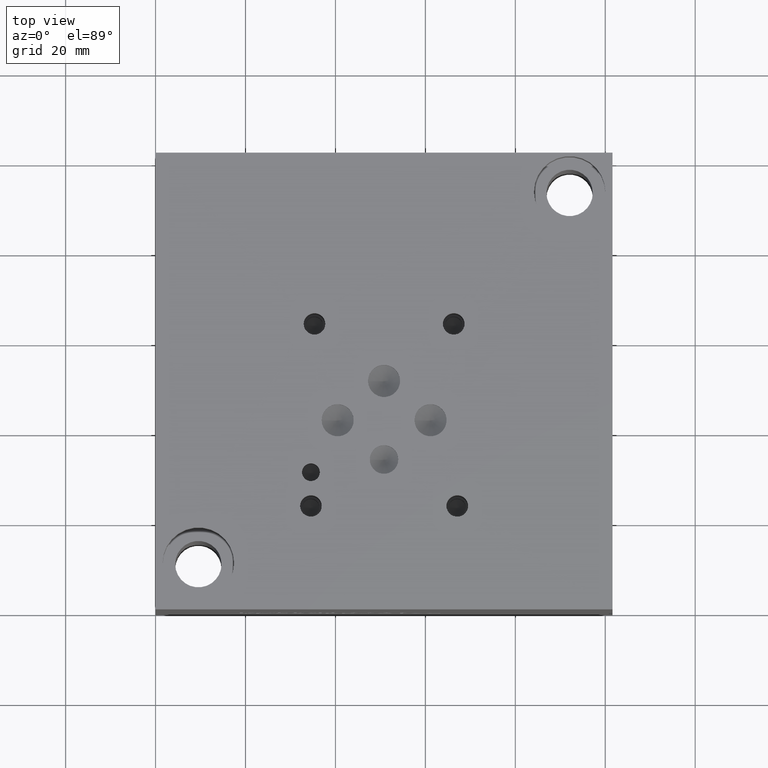
[diagram: clean part render]
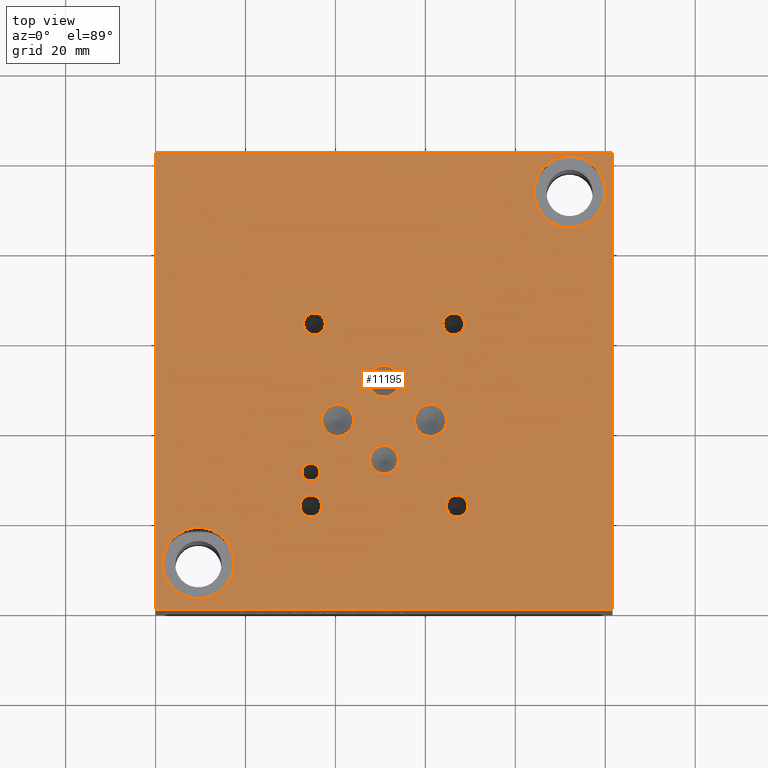
[diagram: same view with one face highlighted and labeled with its STEP entity id]
A machine part, top view. The second image highlights one B-rep face of the part: STEP entity #11195.
In plain terms, the highlighted planar face has unit normal (0, 0, 1).
Its self-contained STEP definition (entity closure, byte-faithful):
#249=CIRCLE('',#11739,7.9375);
#250=CIRCLE('',#11740,7.9375);
#254=CIRCLE('',#11747,7.9375);
#255=CIRCLE('',#11748,7.9375);
#258=CIRCLE('',#11754,3.175);
#259=CIRCLE('',#11755,3.175);
#262=CIRCLE('',#11760,3.5687);
#263=CIRCLE('',#11761,3.5687);
#266=CIRCLE('',#11766,3.5687);
#267=CIRCLE('',#11767,3.5687);
#270=CIRCLE('',#11772,3.5687);
#271=CIRCLE('',#11773,3.5687);
#274=CIRCLE('',#11778,1.9812);
#275=CIRCLE('',#11779,1.9812);
#281=CIRCLE('',#11788,2.413);
#282=CIRCLE('',#11789,2.413);
#288=CIRCLE('',#11799,2.413);
#289=CIRCLE('',#11800,2.413);
#295=CIRCLE('',#11810,2.413);
#296=CIRCLE('',#11811,2.413);
#302=CIRCLE('',#11821,2.413);
#303=CIRCLE('',#11822,2.413);
#371=FACE_BOUND('',#2052,.T.);
#372=FACE_BOUND('',#2053,.T.);
#373=FACE_BOUND('',#2054,.T.);
#374=FACE_BOUND('',#2055,.T.);
#375=FACE_BOUND('',#2056,.T.);
#376=FACE_BOUND('',#2057,.T.);
#377=FACE_BOUND('',#2058,.T.);
#378=FACE_BOUND('',#2059,.T.);
#379=FACE_BOUND('',#2060,.T.);
#380=FACE_BOUND('',#2061,.T.);
#381=FACE_BOUND('',#2062,.T.);
#1414=FACE_OUTER_BOUND('',#2051,.T.);
#2051=EDGE_LOOP('',(#9825,#9826,#9827,#9828));
#2052=EDGE_LOOP('',(#9829,#9830));
#2053=EDGE_LOOP('',(#9831,#9832));
#2054=EDGE_LOOP('',(#9833,#9834));
#2055=EDGE_LOOP('',(#9835,#9836));
#2056=EDGE_LOOP('',(#9837,#9838));
#2057=EDGE_LOOP('',(#9839,#9840));
#2058=EDGE_LOOP('',(#9841,#9842));
#2059=EDGE_LOOP('',(#9843,#9844));
#2060=EDGE_LOOP('',(#9845,#9846));
#2061=EDGE_LOOP('',(#9847,#9848));
#2062=EDGE_LOOP('',(#9849,#9850));
#2440=LINE('',#16811,#3481);
#2925=LINE('',#18321,#3966);
#3015=LINE('',#18647,#4056);
#3104=LINE('',#19308,#4145);
#3481=VECTOR('',#12404,10.);
#3966=VECTOR('',#13241,10.);
#4056=VECTOR('',#13401,10.);
#4145=VECTOR('',#14098,10.);
#4550=VERTEX_POINT('',#16808);
#4551=VERTEX_POINT('',#16810);
#4920=VERTEX_POINT('',#18319);
#4993=VERTEX_POINT('',#18646);
#5138=VERTEX_POINT('',#19132);
#5139=VERTEX_POINT('',#19133);
#5143=VERTEX_POINT('',#19147);
#5144=VERTEX_POINT('',#19148);
#5148=VERTEX_POINT('',#19162);
#5149=VERTEX_POINT('',#19163);
#5153=VERTEX_POINT('',#19175);
#5154=VERTEX_POINT('',#19176);
#5158=VERTEX_POINT('',#19188);
#5159=VERTEX_POINT('',#19189);
#5163=VERTEX_POINT('',#19201);
#5164=VERTEX_POINT('',#19202);
#5168=VERTEX_POINT('',#19214);
#5169=VERTEX_POINT('',#19215);
#5176=VERTEX_POINT('',#19234);
#5177=VERTEX_POINT('',#19235);
#5184=VERTEX_POINT('',#19256);
#5185=VERTEX_POINT('',#19257);
#5192=VERTEX_POINT('',#19278);
#5193=VERTEX_POINT('',#19279);
#5200=VERTEX_POINT('',#19300);
#5201=VERTEX_POINT('',#19301);
#5806=EDGE_CURVE('',#4551,#4550,#2440,.T.);
#6358=EDGE_CURVE('',#4550,#4920,#2925,.T.);
#6466=EDGE_CURVE('',#4993,#4551,#3015,.T.);
#6672=EDGE_CURVE('',#5138,#5139,#249,.T.);
#6673=EDGE_CURVE('',#5139,#5138,#250,.T.);
#6679=EDGE_CURVE('',#5143,#5144,#254,.T.);
#6680=EDGE_CURVE('',#5144,#5143,#255,.T.);
#6686=EDGE_CURVE('',#5148,#5149,#258,.T.);
#6687=EDGE_CURVE('',#5149,#5148,#259,.T.);
#6692=EDGE_CURVE('',#5153,#5154,#262,.T.);
#6693=EDGE_CURVE('',#5154,#5153,#263,.T.);
#6698=EDGE_CURVE('',#5158,#5159,#266,.T.);
#6699=EDGE_CURVE('',#5159,#5158,#267,.T.);
#6704=EDGE_CURVE('',#5163,#5164,#270,.T.);
#6705=EDGE_CURVE('',#5164,#5163,#271,.T.);
#6710=EDGE_CURVE('',#5168,#5169,#274,.T.);
#6711=EDGE_CURVE('',#5169,#5168,#275,.T.);
#6719=EDGE_CURVE('',#5176,#5177,#281,.T.);
#6720=EDGE_CURVE('',#5177,#5176,#282,.T.);
#6729=EDGE_CURVE('',#5184,#5185,#288,.T.);
#6730=EDGE_CURVE('',#5185,#5184,#289,.T.);
#6739=EDGE_CURVE('',#5192,#5193,#295,.T.);
#6740=EDGE_CURVE('',#5193,#5192,#296,.T.);
#6749=EDGE_CURVE('',#5200,#5201,#302,.T.);
#6750=EDGE_CURVE('',#5201,#5200,#303,.T.);
#6753=EDGE_CURVE('',#4920,#4993,#3104,.T.);
#9825=ORIENTED_EDGE('',*,*,#5806,.T.);
#9826=ORIENTED_EDGE('',*,*,#6358,.T.);
#9827=ORIENTED_EDGE('',*,*,#6753,.T.);
#9828=ORIENTED_EDGE('',*,*,#6466,.T.);
#9829=ORIENTED_EDGE('',*,*,#6672,.T.);
#9830=ORIENTED_EDGE('',*,*,#6673,.T.);
#9831=ORIENTED_EDGE('',*,*,#6679,.T.);
#9832=ORIENTED_EDGE('',*,*,#6680,.T.);
#9833=ORIENTED_EDGE('',*,*,#6686,.T.);
#9834=ORIENTED_EDGE('',*,*,#6687,.T.);
#9835=ORIENTED_EDGE('',*,*,#6692,.T.);
#9836=ORIENTED_EDGE('',*,*,#6693,.T.);
#9837=ORIENTED_EDGE('',*,*,#6698,.T.);
#9838=ORIENTED_EDGE('',*,*,#6699,.T.);
#9839=ORIENTED_EDGE('',*,*,#6704,.T.);
#9840=ORIENTED_EDGE('',*,*,#6705,.T.);
#9841=ORIENTED_EDGE('',*,*,#6710,.T.);
#9842=ORIENTED_EDGE('',*,*,#6711,.T.);
#9843=ORIENTED_EDGE('',*,*,#6719,.T.);
#9844=ORIENTED_EDGE('',*,*,#6720,.T.);
#9845=ORIENTED_EDGE('',*,*,#6729,.T.);
#9846=ORIENTED_EDGE('',*,*,#6730,.T.);
#9847=ORIENTED_EDGE('',*,*,#6739,.T.);
#9848=ORIENTED_EDGE('',*,*,#6740,.T.);
#9849=ORIENTED_EDGE('',*,*,#6749,.T.);
#9850=ORIENTED_EDGE('',*,*,#6750,.T.);
#10183=PLANE('',#11826);
#11195=ADVANCED_FACE('',(#1414,#371,#372,#373,#374,#375,#376,#377,#378,
#379,#380,#381),#10183,.T.);
#11739=AXIS2_PLACEMENT_3D('',#19134,#13900,#13901);
#11740=AXIS2_PLACEMENT_3D('',#19135,#13902,#13903);
#11747=AXIS2_PLACEMENT_3D('',#19149,#13918,#13919);
#11748=AXIS2_PLACEMENT_3D('',#19150,#13920,#13921);
#11754=AXIS2_PLACEMENT_3D('',#19164,#13935,#13936);
#11755=AXIS2_PLACEMENT_3D('',#19165,#13937,#13938);
#11760=AXIS2_PLACEMENT_3D('',#19177,#13949,#13950);
#11761=AXIS2_PLACEMENT_3D('',#19178,#13951,#13952);
#11766=AXIS2_PLACEMENT_3D('',#19190,#13963,#13964);
#11767=AXIS2_PLACEMENT_3D('',#19191,#13965,#13966);
#11772=AXIS2_PLACEMENT_3D('',#19203,#13977,#13978);
#11773=AXIS2_PLACEMENT_3D('',#19204,#13979,#13980);
#11778=AXIS2_PLACEMENT_3D('',#19216,#13991,#13992);
#11779=AXIS2_PLACEMENT_3D('',#19217,#13993,#13994);
#11788=AXIS2_PLACEMENT_3D('',#19236,#14013,#14014);
#11789=AXIS2_PLACEMENT_3D('',#19237,#14015,#14016);
#11799=AXIS2_PLACEMENT_3D('',#19258,#14038,#14039);
#11800=AXIS2_PLACEMENT_3D('',#19259,#14040,#14041);
#11810=AXIS2_PLACEMENT_3D('',#19280,#14063,#14064);
#11811=AXIS2_PLACEMENT_3D('',#19281,#14065,#14066);
#11821=AXIS2_PLACEMENT_3D('',#19302,#14088,#14089);
#11822=AXIS2_PLACEMENT_3D('',#19303,#14090,#14091);
#11826=AXIS2_PLACEMENT_3D('',#19310,#14101,#14102);
#12404=DIRECTION('',(1.,0.,0.));
#13241=DIRECTION('',(0.,1.,0.));
#13401=DIRECTION('',(0.,-1.,0.));
#13900=DIRECTION('center_axis',(0.,0.,-1.));
#13901=DIRECTION('ref_axis',(1.,0.,0.));
#13902=DIRECTION('center_axis',(0.,0.,-1.));
#13903=DIRECTION('ref_axis',(1.,0.,0.));
#13918=DIRECTION('center_axis',(0.,0.,-1.));
#13919=DIRECTION('ref_axis',(1.,0.,0.));
#13920=DIRECTION('center_axis',(0.,0.,-1.));
#13921=DIRECTION('ref_axis',(1.,0.,0.));
#13935=DIRECTION('center_axis',(0.,0.,-1.));
#13936=DIRECTION('ref_axis',(1.,0.,0.));
#13937=DIRECTION('center_axis',(0.,0.,-1.));
#13938=DIRECTION('ref_axis',(1.,0.,0.));
#13949=DIRECTION('center_axis',(0.,0.,-1.));
#13950=DIRECTION('ref_axis',(1.,0.,0.));
#13951=DIRECTION('center_axis',(0.,0.,-1.));
#13952=DIRECTION('ref_axis',(1.,0.,0.));
#13963=DIRECTION('center_axis',(0.,0.,-1.));
#13964=DIRECTION('ref_axis',(1.,0.,0.));
#13965=DIRECTION('center_axis',(0.,0.,-1.));
#13966=DIRECTION('ref_axis',(1.,0.,0.));
#13977=DIRECTION('center_axis',(0.,0.,-1.));
#13978=DIRECTION('ref_axis',(1.,0.,0.));
#13979=DIRECTION('center_axis',(0.,0.,-1.));
#13980=DIRECTION('ref_axis',(1.,0.,0.));
#13991=DIRECTION('center_axis',(0.,0.,-1.));
#13992=DIRECTION('ref_axis',(1.,0.,0.));
#13993=DIRECTION('center_axis',(0.,0.,-1.));
#13994=DIRECTION('ref_axis',(1.,0.,0.));
#14013=DIRECTION('center_axis',(0.,0.,-1.));
#14014=DIRECTION('ref_axis',(1.,0.,0.));
#14015=DIRECTION('center_axis',(0.,0.,-1.));
#14016=DIRECTION('ref_axis',(1.,0.,0.));
#14038=DIRECTION('center_axis',(0.,0.,-1.));
#14039=DIRECTION('ref_axis',(1.,0.,0.));
#14040=DIRECTION('center_axis',(0.,0.,-1.));
#14041=DIRECTION('ref_axis',(1.,0.,0.));
#14063=DIRECTION('center_axis',(0.,0.,-1.));
#14064=DIRECTION('ref_axis',(1.,0.,0.));
#14065=DIRECTION('center_axis',(0.,0.,-1.));
#14066=DIRECTION('ref_axis',(1.,0.,0.));
#14088=DIRECTION('center_axis',(0.,0.,-1.));
#14089=DIRECTION('ref_axis',(1.,0.,0.));
#14090=DIRECTION('center_axis',(0.,0.,-1.));
#14091=DIRECTION('ref_axis',(1.,0.,0.));
#14098=DIRECTION('',(-1.,0.,0.));
#14101=DIRECTION('center_axis',(0.,0.,1.));
#14102=DIRECTION('ref_axis',(1.,0.,0.));
#16808=CARTESIAN_POINT('',(101.6,0.,76.2));
#16810=CARTESIAN_POINT('',(0.,0.,76.2));
#16811=CARTESIAN_POINT('',(0.,0.,76.2));
#18319=CARTESIAN_POINT('',(101.6,101.6,76.2));
#18321=CARTESIAN_POINT('',(101.6,0.,76.2));
#18646=CARTESIAN_POINT('',(0.,101.6,76.2));
#18647=CARTESIAN_POINT('',(0.,101.6,76.2));
#19132=CARTESIAN_POINT('',(100.0125,92.8624,76.2));
#19133=CARTESIAN_POINT('',(84.1375,92.8624,76.2));
#19134=CARTESIAN_POINT('Origin',(92.075,92.8624,76.2));
#19135=CARTESIAN_POINT('Origin',(92.075,92.8624,76.2));
#19147=CARTESIAN_POINT('',(17.4625,10.3124,76.2));
#19148=CARTESIAN_POINT('',(1.5875,10.3124,76.2));
#19149=CARTESIAN_POINT('Origin',(9.525,10.3124,76.2));
#19150=CARTESIAN_POINT('Origin',(9.525,10.3124,76.2));
#19162=CARTESIAN_POINT('',(53.975,33.3248,76.2));
#19163=CARTESIAN_POINT('',(47.625,33.3248,76.2));
#19164=CARTESIAN_POINT('Origin',(50.8,33.3248,76.2));
#19165=CARTESIAN_POINT('Origin',(50.8,33.3248,76.2));
#19175=CARTESIAN_POINT('',(64.7065,42.0624,76.2));
#19176=CARTESIAN_POINT('',(57.5691,42.0624,76.2));
#19177=CARTESIAN_POINT('Origin',(61.1378,42.0624,76.2));
#19178=CARTESIAN_POINT('Origin',(61.1378,42.0624,76.2));
#19188=CARTESIAN_POINT('',(44.0563,42.0624,76.2));
#19189=CARTESIAN_POINT('',(36.9189,42.0624,76.2));
#19190=CARTESIAN_POINT('Origin',(40.4876,42.0624,76.2));
#19191=CARTESIAN_POINT('Origin',(40.4876,42.0624,76.2));
#19201=CARTESIAN_POINT('',(54.3687,50.8,76.2));
#19202=CARTESIAN_POINT('',(47.2313,50.8,76.2));
#19203=CARTESIAN_POINT('Origin',(50.8,50.8,76.2));
#19204=CARTESIAN_POINT('Origin',(50.8,50.8,76.2));
#19214=CARTESIAN_POINT('',(36.5252,30.5054,76.2));
#19215=CARTESIAN_POINT('',(32.5628,30.5054,76.2));
#19216=CARTESIAN_POINT('Origin',(34.544,30.5054,76.2));
#19217=CARTESIAN_POINT('Origin',(34.544,30.5054,76.2));
#19234=CARTESIAN_POINT('',(69.4944,23.0124,76.2));
#19235=CARTESIAN_POINT('',(64.6684,23.0124,76.2));
#19236=CARTESIAN_POINT('Origin',(67.0814,23.0124,76.2));
#19237=CARTESIAN_POINT('Origin',(67.0814,23.0124,76.2));
#19256=CARTESIAN_POINT('',(37.7444,63.5,76.2));
#19257=CARTESIAN_POINT('',(32.9184,63.5,76.2));
#19258=CARTESIAN_POINT('Origin',(35.3314,63.5,76.2));
#19259=CARTESIAN_POINT('Origin',(35.3314,63.5,76.2));
#19278=CARTESIAN_POINT('',(68.707,63.5,76.2));
#19279=CARTESIAN_POINT('',(63.881,63.5,76.2));
#19280=CARTESIAN_POINT('Origin',(66.294,63.5,76.2));
#19281=CARTESIAN_POINT('Origin',(66.294,63.5,76.2));
#19300=CARTESIAN_POINT('',(36.957,23.0124,76.2));
#19301=CARTESIAN_POINT('',(32.131,23.0124,76.2));
#19302=CARTESIAN_POINT('Origin',(34.544,23.0124,76.2));
#19303=CARTESIAN_POINT('Origin',(34.544,23.0124,76.2));
#19308=CARTESIAN_POINT('',(101.6,101.6,76.2));
#19310=CARTESIAN_POINT('Origin',(50.8,50.8,76.2));